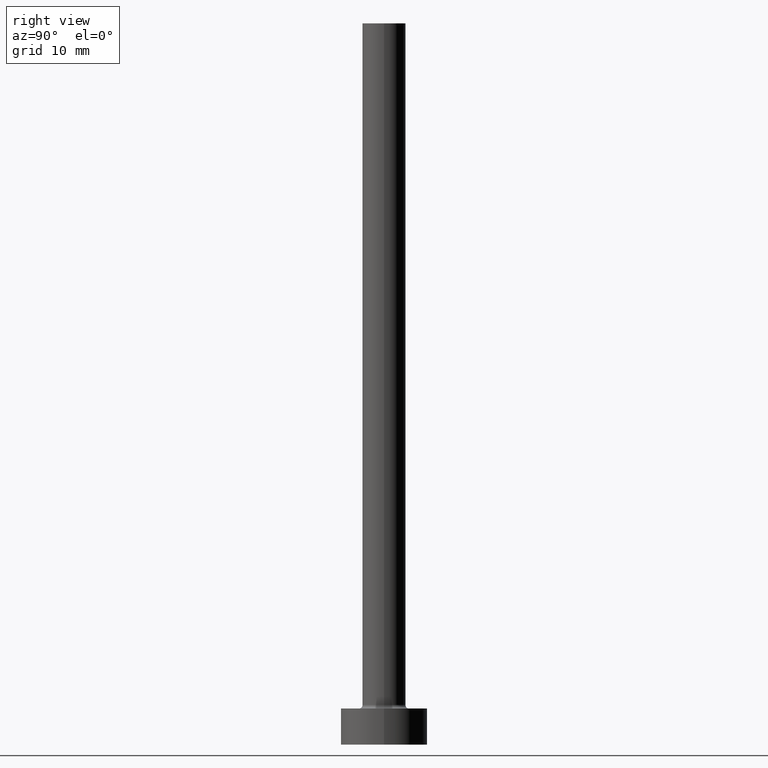
[diagram: clean part render]
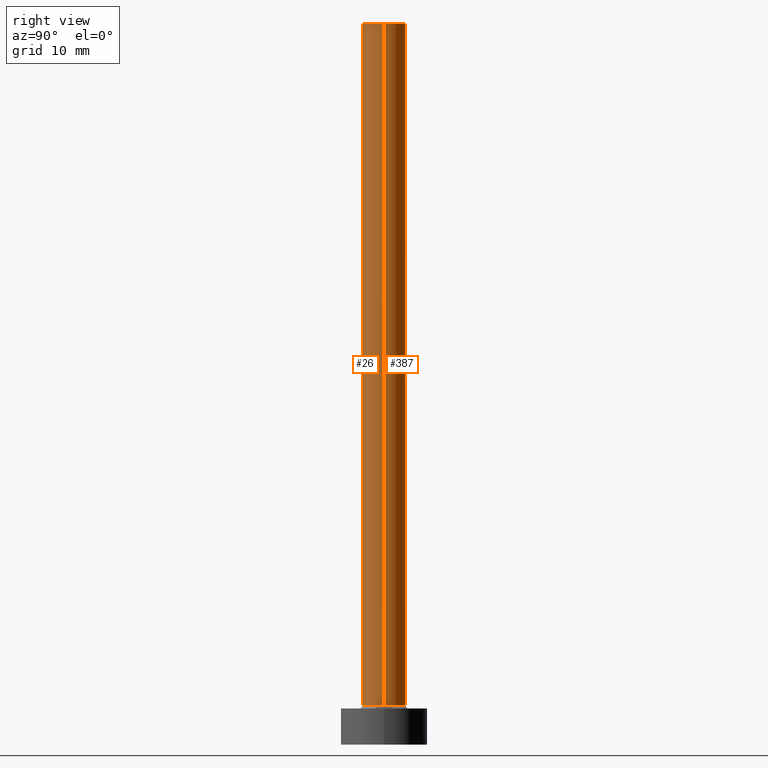
[diagram: same view with one multi-face feature highlighted, each face labeled with its STEP entity id]
A machine part, right view. The highlighted faces form ONE feature: a constant-radius fillet chain: 2 tangent blend faces with common blend radius 3 mm. The faces share edges in the B-rep.
Their STEP definitions:
[1] entity #387 (Cylinder):
#31 = VERTEX_POINT ( 'NONE', #60 ) ;
#36 = LINE ( 'NONE', #74, #195 ) ;
#56 = LINE ( 'NONE', #276, #393 ) ;
#60 = CARTESIAN_POINT ( 'NONE',  ( 3.000000000000000444, 3.673940397442060361E-16, 5.500000000000005329 ) ) ;
#71 = AXIS2_PLACEMENT_3D ( 'NONE', #133, #99, #137 ) ;
#74 = CARTESIAN_POINT ( 'NONE',  ( -3.000000000000000444, 0.000000000000000000, 100.0000000000000000 ) ) ;
#90 = EDGE_CURVE ( 'NONE', #191, #151, #114, .T. ) ;
#93 = DIRECTION ( 'NONE',  ( 1.000000000000000000, 0.000000000000000000, 0.000000000000000000 ) ) ;
#99 = DIRECTION ( 'NONE',  ( -0.000000000000000000, -0.000000000000000000, -1.000000000000000000 ) ) ;
#102 = ORIENTED_EDGE ( 'NONE', *, *, #224, .T. ) ;
#107 = AXIS2_PLACEMENT_3D ( 'NONE', #371, #329, #183 ) ;
#114 = CIRCLE ( 'NONE', #384, 3.000000000000000444 ) ;
#117 = CIRCLE ( 'NONE', #107, 3.000000000000000444 ) ;
#122 = DIRECTION ( 'NONE',  ( -0.000000000000000000, -0.000000000000000000, -1.000000000000000000 ) ) ;
#133 = CARTESIAN_POINT ( 'NONE',  ( 0.000000000000000000, 0.000000000000000000, 100.0000000000000000 ) ) ;
#137 = DIRECTION ( 'NONE',  ( -1.000000000000000000, 0.000000000000000000, 0.000000000000000000 ) ) ;
#151 = VERTEX_POINT ( 'NONE', #432 ) ;
#153 = ORIENTED_EDGE ( 'NONE', *, *, #436, .T. ) ;
#168 = EDGE_CURVE ( 'NONE', #151, #170, #36, .T. ) ;
#170 = VERTEX_POINT ( 'NONE', #259 ) ;
#183 = DIRECTION ( 'NONE',  ( 1.000000000000000000, 0.000000000000000000, 0.000000000000000000 ) ) ;
#186 = EDGE_LOOP ( 'NONE', ( #400, #102, #153, #286 ) ) ;
#191 = VERTEX_POINT ( 'NONE', #197 ) ;
#195 = VECTOR ( 'NONE', #298, 1000.000000000000000 ) ;
#197 = CARTESIAN_POINT ( 'NONE',  ( 3.000000000000000444, 3.673940397442060361E-16, 100.0000000000000000 ) ) ;
#216 = FACE_OUTER_BOUND ( 'NONE', #186, .T. ) ;
#224 = EDGE_CURVE ( 'NONE', #191, #31, #56, .T. ) ;
#259 = CARTESIAN_POINT ( 'NONE',  ( -3.000000000000000444, 0.000000000000000000, 5.500000000000005329 ) ) ;
#276 = CARTESIAN_POINT ( 'NONE',  ( 3.000000000000000444, 3.673940397442060361E-16, 100.0000000000000000 ) ) ;
#286 = ORIENTED_EDGE ( 'NONE', *, *, #168, .F. ) ;
#298 = DIRECTION ( 'NONE',  ( -0.000000000000000000, -0.000000000000000000, -1.000000000000000000 ) ) ;
#329 = DIRECTION ( 'NONE',  ( 0.000000000000000000, 0.000000000000000000, 1.000000000000000000 ) ) ;
#371 = CARTESIAN_POINT ( 'NONE',  ( 0.000000000000000000, 0.000000000000000000, 5.500000000000005329 ) ) ;
#384 = AXIS2_PLACEMENT_3D ( 'NONE', #419, #449, #93 ) ;
#387 = ADVANCED_FACE ( 'NONE', ( #216 ), #459, .T. ) ;
#393 = VECTOR ( 'NONE', #122, 1000.000000000000000 ) ;
#400 = ORIENTED_EDGE ( 'NONE', *, *, #90, .F. ) ;
#419 = CARTESIAN_POINT ( 'NONE',  ( 0.000000000000000000, 0.000000000000000000, 100.0000000000000000 ) ) ;
#432 = CARTESIAN_POINT ( 'NONE',  ( -3.000000000000000444, 0.000000000000000000, 100.0000000000000000 ) ) ;
#436 = EDGE_CURVE ( 'NONE', #31, #170, #117, .T. ) ;
#449 = DIRECTION ( 'NONE',  ( 0.000000000000000000, 0.000000000000000000, 1.000000000000000000 ) ) ;
#459 = CYLINDRICAL_SURFACE ( 'NONE', #71, 3.000000000000000444 ) ;
[2] entity #26 (Cylinder):
#14 = CARTESIAN_POINT ( 'NONE',  ( 0.000000000000000000, 0.000000000000000000, 100.0000000000000000 ) ) ;
#20 = AXIS2_PLACEMENT_3D ( 'NONE', #150, #82, #346 ) ;
#26 = ADVANCED_FACE ( 'NONE', ( #263 ), #406, .T. ) ;
#31 = VERTEX_POINT ( 'NONE', #60 ) ;
#36 = LINE ( 'NONE', #74, #195 ) ;
#40 = AXIS2_PLACEMENT_3D ( 'NONE', #14, #317, #454 ) ;
#55 = EDGE_CURVE ( 'NONE', #151, #191, #123, .T. ) ;
#56 = LINE ( 'NONE', #276, #393 ) ;
#60 = CARTESIAN_POINT ( 'NONE',  ( 3.000000000000000444, 3.673940397442060361E-16, 5.500000000000005329 ) ) ;
#64 = AXIS2_PLACEMENT_3D ( 'NONE', #127, #284, #162 ) ;
#68 = ORIENTED_EDGE ( 'NONE', *, *, #214, .T. ) ;
#74 = CARTESIAN_POINT ( 'NONE',  ( -3.000000000000000444, 0.000000000000000000, 100.0000000000000000 ) ) ;
#82 = DIRECTION ( 'NONE',  ( -0.000000000000000000, -0.000000000000000000, -1.000000000000000000 ) ) ;
#122 = DIRECTION ( 'NONE',  ( -0.000000000000000000, -0.000000000000000000, -1.000000000000000000 ) ) ;
#123 = CIRCLE ( 'NONE', #40, 3.000000000000000444 ) ;
#127 = CARTESIAN_POINT ( 'NONE',  ( 0.000000000000000000, 0.000000000000000000, 5.500000000000005329 ) ) ;
#147 = ORIENTED_EDGE ( 'NONE', *, *, #224, .F. ) ;
#150 = CARTESIAN_POINT ( 'NONE',  ( 0.000000000000000000, 0.000000000000000000, 100.0000000000000000 ) ) ;
#151 = VERTEX_POINT ( 'NONE', #432 ) ;
#162 = DIRECTION ( 'NONE',  ( 1.000000000000000000, 0.000000000000000000, 0.000000000000000000 ) ) ;
#168 = EDGE_CURVE ( 'NONE', #151, #170, #36, .T. ) ;
#170 = VERTEX_POINT ( 'NONE', #259 ) ;
#179 = ORIENTED_EDGE ( 'NONE', *, *, #55, .F. ) ;
#191 = VERTEX_POINT ( 'NONE', #197 ) ;
#195 = VECTOR ( 'NONE', #298, 1000.000000000000000 ) ;
#197 = CARTESIAN_POINT ( 'NONE',  ( 3.000000000000000444, 3.673940397442060361E-16, 100.0000000000000000 ) ) ;
#214 = EDGE_CURVE ( 'NONE', #170, #31, #279, .T. ) ;
#224 = EDGE_CURVE ( 'NONE', #191, #31, #56, .T. ) ;
#234 = ORIENTED_EDGE ( 'NONE', *, *, #168, .T. ) ;
#259 = CARTESIAN_POINT ( 'NONE',  ( -3.000000000000000444, 0.000000000000000000, 5.500000000000005329 ) ) ;
#263 = FACE_OUTER_BOUND ( 'NONE', #308, .T. ) ;
#276 = CARTESIAN_POINT ( 'NONE',  ( 3.000000000000000444, 3.673940397442060361E-16, 100.0000000000000000 ) ) ;
#279 = CIRCLE ( 'NONE', #64, 3.000000000000000444 ) ;
#284 = DIRECTION ( 'NONE',  ( 0.000000000000000000, 0.000000000000000000, 1.000000000000000000 ) ) ;
#298 = DIRECTION ( 'NONE',  ( -0.000000000000000000, -0.000000000000000000, -1.000000000000000000 ) ) ;
#308 = EDGE_LOOP ( 'NONE', ( #147, #179, #234, #68 ) ) ;
#317 = DIRECTION ( 'NONE',  ( 0.000000000000000000, 0.000000000000000000, 1.000000000000000000 ) ) ;
#346 = DIRECTION ( 'NONE',  ( -1.000000000000000000, 0.000000000000000000, 0.000000000000000000 ) ) ;
#393 = VECTOR ( 'NONE', #122, 1000.000000000000000 ) ;
#406 = CYLINDRICAL_SURFACE ( 'NONE', #20, 3.000000000000000444 ) ;
#432 = CARTESIAN_POINT ( 'NONE',  ( -3.000000000000000444, 0.000000000000000000, 100.0000000000000000 ) ) ;
#454 = DIRECTION ( 'NONE',  ( 1.000000000000000000, 0.000000000000000000, 0.000000000000000000 ) ) ;